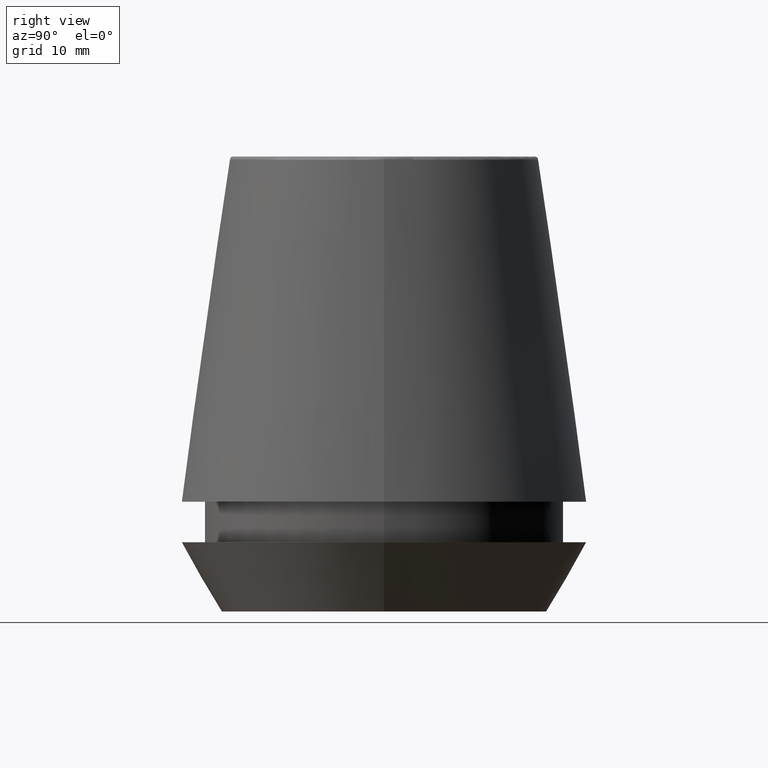
[diagram: clean part render]
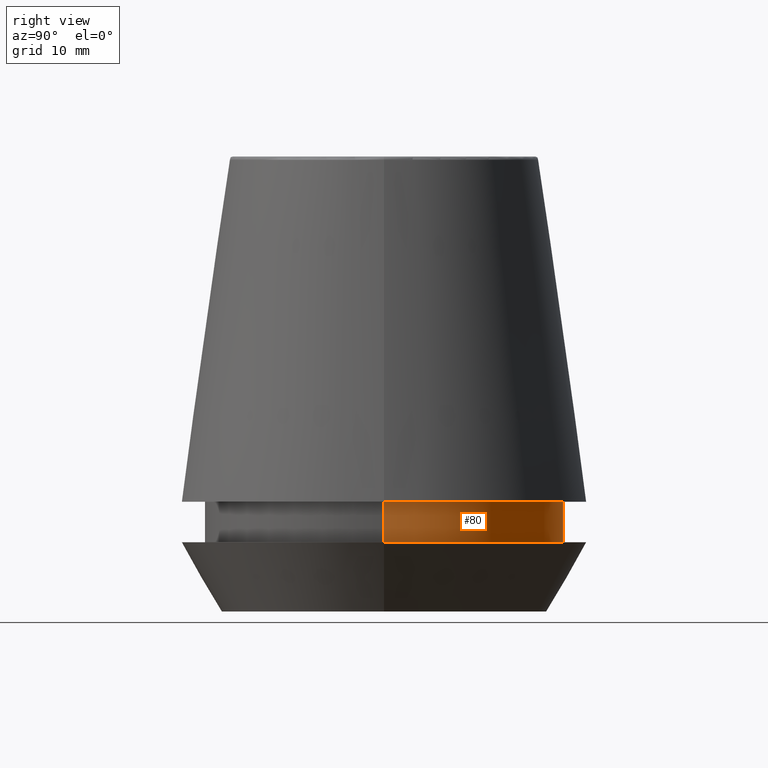
[diagram: same view with one face highlighted and labeled with its STEP entity id]
A machine part, right view. The second image highlights one B-rep face of the part: STEP entity #80.
In plain terms, the highlighted cylindrical surface (partial cylindrical patch) has radius 18.1 mm, axis along (-0, -0, 1).
Its self-contained STEP definition (entity closure, byte-faithful):
#8 = VECTOR ( 'NONE', #323, 1000.000000000000000 ) ;
#19 = CARTESIAN_POINT ( 'NONE',  ( -18.10000000000000500, 2.216610706456710000E-015, 46.00000000000000000 ) ) ;
#45 = DIRECTION ( 'NONE',  ( -0.0000000000000000000, -0.0000000000000000000, 1.000000000000000000 ) ) ;
#80 = ADVANCED_FACE ( 'NONE', ( #150 ), #176, .T. ) ;
#83 = EDGE_CURVE ( 'NONE', #368, #107, #207, .T. ) ;
#84 = DIRECTION ( 'NONE',  ( -0.0000000000000000000, -0.0000000000000000000, 1.000000000000000000 ) ) ;
#93 = CARTESIAN_POINT ( 'NONE',  ( -18.10000000000000100, 2.216610706456709600E-015, 6.999999999999999100 ) ) ;
#103 = VECTOR ( 'NONE', #211, 1000.000000000000000 ) ;
#107 = VERTEX_POINT ( 'NONE', #189 ) ;
#111 = EDGE_CURVE ( 'NONE', #166, #107, #312, .T. ) ;
#121 = EDGE_LOOP ( 'NONE', ( #164, #197, #182, #325 ) ) ;
#139 = EDGE_CURVE ( 'NONE', #141, #166, #250, .T. ) ;
#141 = VERTEX_POINT ( 'NONE', #213 ) ;
#148 = CARTESIAN_POINT ( 'NONE',  ( 18.10000000000000500, 0.0000000000000000000, 11.09999999999999800 ) ) ;
#150 = FACE_OUTER_BOUND ( 'NONE', #121, .T. ) ;
#158 = DIRECTION ( 'NONE',  ( 1.000000000000000000, 0.0000000000000000000, 0.0000000000000000000 ) ) ;
#164 = ORIENTED_EDGE ( 'NONE', *, *, #184, .T. ) ;
#166 = VERTEX_POINT ( 'NONE', #148 ) ;
#176 = CYLINDRICAL_SURFACE ( 'NONE', #352, 18.10000000000000500 ) ;
#182 = ORIENTED_EDGE ( 'NONE', *, *, #111, .F. ) ;
#184 = EDGE_CURVE ( 'NONE', #141, #368, #187, .T. ) ;
#187 = CIRCLE ( 'NONE', #204, 18.10000000000000100 ) ;
#189 = CARTESIAN_POINT ( 'NONE',  ( -18.10000000000000500, 2.216610706456710000E-015, 11.09999999999999800 ) ) ;
#190 = CARTESIAN_POINT ( 'NONE',  ( 0.0000000000000000000, 0.0000000000000000000, 11.09999999999999800 ) ) ;
#197 = ORIENTED_EDGE ( 'NONE', *, *, #83, .T. ) ;
#204 = AXIS2_PLACEMENT_3D ( 'NONE', #259, #84, #291 ) ;
#207 = LINE ( 'NONE', #19, #103 ) ;
#211 = DIRECTION ( 'NONE',  ( -0.0000000000000000000, -0.0000000000000000000, 1.000000000000000000 ) ) ;
#213 = CARTESIAN_POINT ( 'NONE',  ( 18.10000000000000100, 0.0000000000000000000, 6.999999999999999100 ) ) ;
#234 = AXIS2_PLACEMENT_3D ( 'NONE', #190, #348, #158 ) ;
#250 = LINE ( 'NONE', #287, #8 ) ;
#259 = CARTESIAN_POINT ( 'NONE',  ( 0.0000000000000000000, 0.0000000000000000000, 6.999999999999999100 ) ) ;
#283 = DIRECTION ( 'NONE',  ( 1.000000000000000000, 0.0000000000000000000, 0.0000000000000000000 ) ) ;
#287 = CARTESIAN_POINT ( 'NONE',  ( 18.10000000000000500, 0.0000000000000000000, 46.00000000000000000 ) ) ;
#291 = DIRECTION ( 'NONE',  ( 1.000000000000000000, 0.0000000000000000000, 0.0000000000000000000 ) ) ;
#312 = CIRCLE ( 'NONE', #234, 18.10000000000000500 ) ;
#323 = DIRECTION ( 'NONE',  ( -0.0000000000000000000, -0.0000000000000000000, 1.000000000000000000 ) ) ;
#325 = ORIENTED_EDGE ( 'NONE', *, *, #139, .F. ) ;
#346 = CARTESIAN_POINT ( 'NONE',  ( 0.0000000000000000000, 0.0000000000000000000, 46.00000000000000000 ) ) ;
#348 = DIRECTION ( 'NONE',  ( -0.0000000000000000000, -0.0000000000000000000, 1.000000000000000000 ) ) ;
#352 = AXIS2_PLACEMENT_3D ( 'NONE', #346, #45, #283 ) ;
#368 = VERTEX_POINT ( 'NONE', #93 ) ;